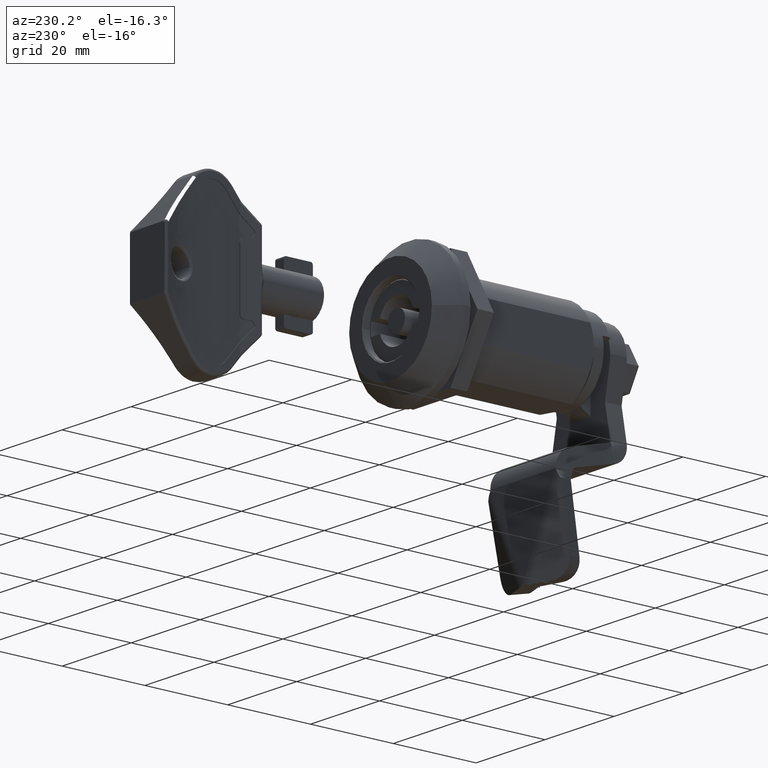
[diagram: clean part render]
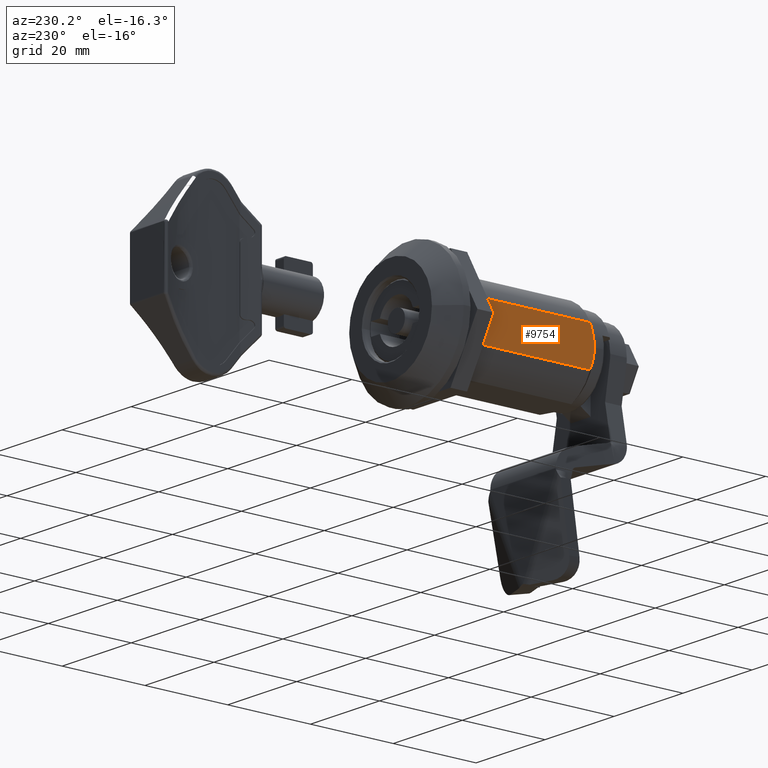
[diagram: same view with one face highlighted and labeled with its STEP entity id]
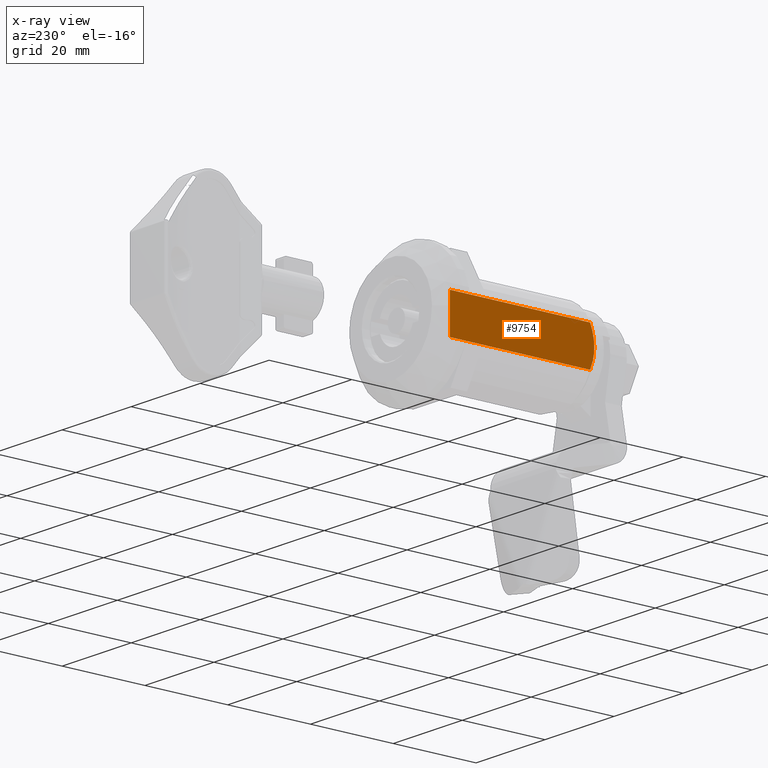
[diagram: x-ray of the same camera — body ghosted, the highlighted face saturated]
A machine part, auxiliary view. The second image highlights one B-rep face of the part: STEP entity #9754.
The next image is the same camera in x-ray: the body ghosted, the highlighted face saturated — about 0% of this face is hidden behind the body in this view.
In plain terms, the highlighted planar face has unit normal (1, -0, 0).
Its self-contained STEP definition (entity closure, byte-faithful):
#71 = CARTESIAN_POINT ( 'NONE',  ( -0.006167275706332395191, 49.64999999999996305, -14.82000000000000028 ) ) ;
#87 = DIRECTION ( 'NONE',  ( 3.317293887944518980E-16, 1.000000000000000000, 1.941967155733531827E-16 ) ) ;
#1082 = VERTEX_POINT ( 'NONE', #12690 ) ;
#2213 = EDGE_CURVE ( 'NONE', #3825, #20194, #16242, .T. ) ;
#2927 = ORIENTED_EDGE ( 'NONE', *, *, #2213, .F. ) ;
#2933 = CARTESIAN_POINT ( 'NONE',  ( -0.006167275706348692051, 14.77406083346411414, 0.7047527420466149772 ) ) ;
#3535 = DIRECTION ( 'NONE',  ( 3.317293887944518980E-16, 1.000000000000000000, 1.941967155733531827E-16 ) ) ;
#3597 = CARTESIAN_POINT ( 'NONE',  ( -0.006167275706349843040, 15.19173892107235879, 4.595637836240895169 ) ) ;
#3825 = VERTEX_POINT ( 'NONE', #11757 ) ;
#4301 = CARTESIAN_POINT ( 'NONE',  ( -0.006167275706348352045, 15.44515205090821297, -2.350819655726620105 ) ) ;
#4824 = CARTESIAN_POINT ( 'NONE',  ( -0.006167275706348250564, 14.93400685595278077, -0.4625889243083549096 ) ) ;
#5361 = CARTESIAN_POINT ( 'NONE',  ( -0.006167275706573521754, 15.75000000000000711, 6.082575694955230539 ) ) ;
#6840 = EDGE_CURVE ( 'NONE', #3825, #23893, #21186, .T. ) ;
#7558 = LINE ( 'NONE', #20350, #16219 ) ;
#7755 = CARTESIAN_POINT ( 'NONE',  ( -0.006167275706349452727, 14.84488555888313854, 3.068367420051178573 ) ) ;
#9081 = CARTESIAN_POINT ( 'NONE',  ( -0.006167275706335864638, 49.64999999999999147, -3.082575694955904222 ) ) ;
#9754 = ADVANCED_FACE ( 'NONE', ( #19809 ), #15500, .F. ) ;
#9759 = AXIS2_PLACEMENT_3D ( 'NONE', #13341, #19284, #19541 ) ;
#9924 = EDGE_CURVE ( 'NONE', #15676, #1082, #7558, .T. ) ;
#10136 = ORIENTED_EDGE ( 'NONE', *, *, #9924, .T. ) ;
#11757 = CARTESIAN_POINT ( 'NONE',  ( -0.006167275706348007702, 15.75000000000001776, -3.082575694955938861 ) ) ;
#12039 = LINE ( 'NONE', #71, #17235 ) ;
#12481 = CARTESIAN_POINT ( 'NONE',  ( -0.006167275706347783056, 15.19498500394132989, -1.606243761755607569 ) ) ;
#12690 = CARTESIAN_POINT ( 'NONE',  ( -0.006167275706561378690, 49.64999999999998437, 6.082575694955265178 ) ) ;
#13066 = B_SPLINE_CURVE_WITH_KNOTS ( 'NONE', 3,
 ( #18117, #21893, #7755, #3597, #13797, #5361 ),
 .UNSPECIFIED., .F., .F.,
 ( 4, 2, 4 ),
 ( 0.004692133880565579895, 0.007036806785715306670, 0.009381479690865033444 ),
 .UNSPECIFIED. ) ;
#13132 = CARTESIAN_POINT ( 'NONE',  ( -0.006167275706348962667, 14.74999999999977263, 1.499999999999991784 ) ) ;
#13341 = CARTESIAN_POINT ( 'NONE',  ( -0.006167275706335864638, 49.64999999999999147, -3.082575694955987267 ) ) ;
#13797 = CARTESIAN_POINT ( 'NONE',  ( -0.006167275706351334902, 15.44486973947035935, 5.350141996256825294 ) ) ;
#15030 = CARTESIAN_POINT ( 'NONE',  ( -0.006167275706348830829, 14.74999999999977440, 1.103803666762354307 ) ) ;
#15161 = CARTESIAN_POINT ( 'NONE',  ( -0.006167275706348401484, 14.86612380159479940, -0.07689041391134941728 ) ) ;
#15209 = EDGE_CURVE ( 'NONE', #23893, #15676, #13066, .T. ) ;
#15500 = PLANE ( 'NONE',  #9759 ) ;
#15676 = VERTEX_POINT ( 'NONE', #25636 ) ;
#16095 = ORIENTED_EDGE ( 'NONE', *, *, #21907, .F. ) ;
#16219 = VECTOR ( 'NONE', #3535, 1000.000000000000000 ) ;
#16242 = LINE ( 'NONE', #22307, #23454 ) ;
#16580 = ORIENTED_EDGE ( 'NONE', *, *, #6840, .T. ) ;
#17235 = VECTOR ( 'NONE', #18771, 1000.000000000000000 ) ;
#18117 = CARTESIAN_POINT ( 'NONE',  ( -0.006167275706348962667, 14.74999999999977263, 1.499999999999991784 ) ) ;
#18771 = DIRECTION ( 'NONE',  ( -3.317293887944518487E-16, -1.941967155733530841E-16, 1.000000000000000000 ) ) ;
#19284 = DIRECTION ( 'NONE',  ( 1.000000000000000000, -3.317293887944521445E-16, 3.317293887944517994E-16 ) ) ;
#19541 = DIRECTION ( 'NONE',  ( -3.317293887944518487E-16, -1.941967155733530841E-16, 1.000000000000000000 ) ) ;
#19809 = FACE_OUTER_BOUND ( 'NONE', #22824, .T. ) ;
#20194 = VERTEX_POINT ( 'NONE', #9081 ) ;
#20350 = CARTESIAN_POINT ( 'NONE',  ( -0.006167275706901384491, 32.69999999999998153, 6.082575694954678980 ) ) ;
#21186 = B_SPLINE_CURVE_WITH_KNOTS ( 'NONE', 3,
 ( #26623, #4301, #12481, #4824, #15161, #2933, #15030, #13132 ),
 .UNSPECIFIED., .F., .F.,
 ( 4, 2, 2, 4 ),
 ( 2.024876365526581719E-17, 0.002346066940282801223, 0.003519100410424191427, 0.004692133880565579895 ),
 .UNSPECIFIED. ) ;
#21893 = CARTESIAN_POINT ( 'NONE',  ( -0.006167275706349225478, 14.74999999999977440, 2.291921826024266196 ) ) ;
#21907 = EDGE_CURVE ( 'NONE', #20194, #1082, #12039, .T. ) ;
#22307 = CARTESIAN_POINT ( 'NONE',  ( -0.006167275706342803532, 32.02245724544727778, -3.082575694955990819 ) ) ;
#22824 = EDGE_LOOP ( 'NONE', ( #16095, #2927, #16580, #23583, #10136 ) ) ;
#23203 = CARTESIAN_POINT ( 'NONE',  ( -0.006167275706348962667, 14.74999999999977263, 1.499999999999991784 ) ) ;
#23454 = VECTOR ( 'NONE', #87, 1000.000000000000000 ) ;
#23583 = ORIENTED_EDGE ( 'NONE', *, *, #15209, .T. ) ;
#23893 = VERTEX_POINT ( 'NONE', #23203 ) ;
#25636 = CARTESIAN_POINT ( 'NONE',  ( -0.006167275706573521754, 15.75000000000000711, 6.082575694955230539 ) ) ;
#26623 = CARTESIAN_POINT ( 'NONE',  ( -0.006167275706348007702, 15.75000000000001776, -3.082575694955938861 ) ) ;